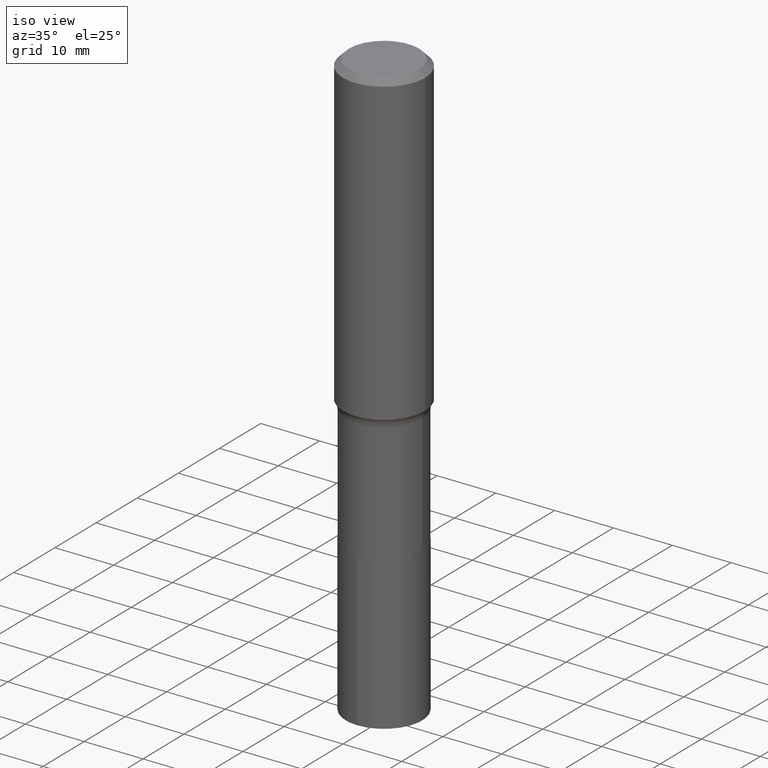
[diagram: clean part render]
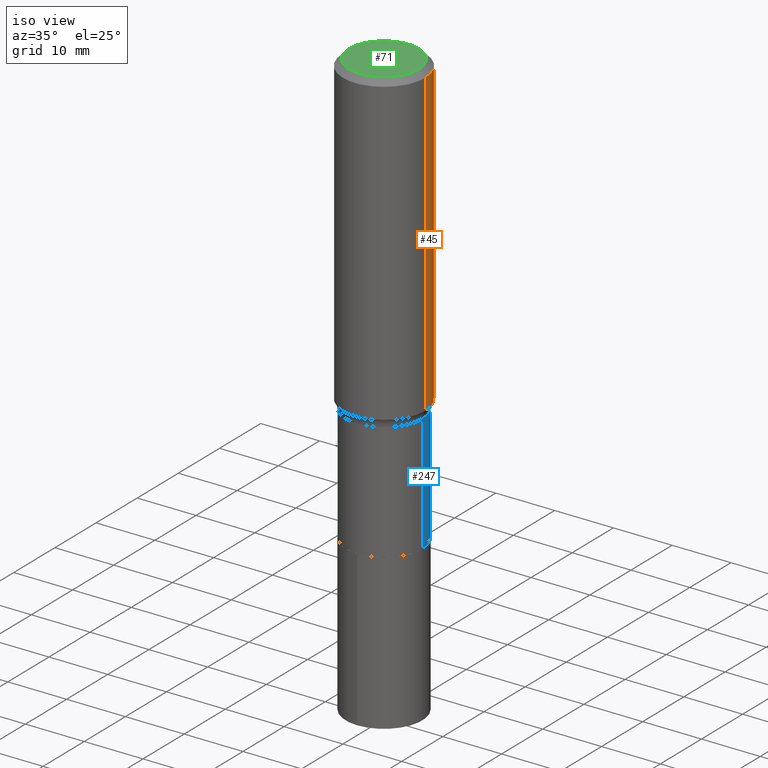
[diagram: same view with three faces highlighted in distinct colors, each labeled with its STEP entity id]
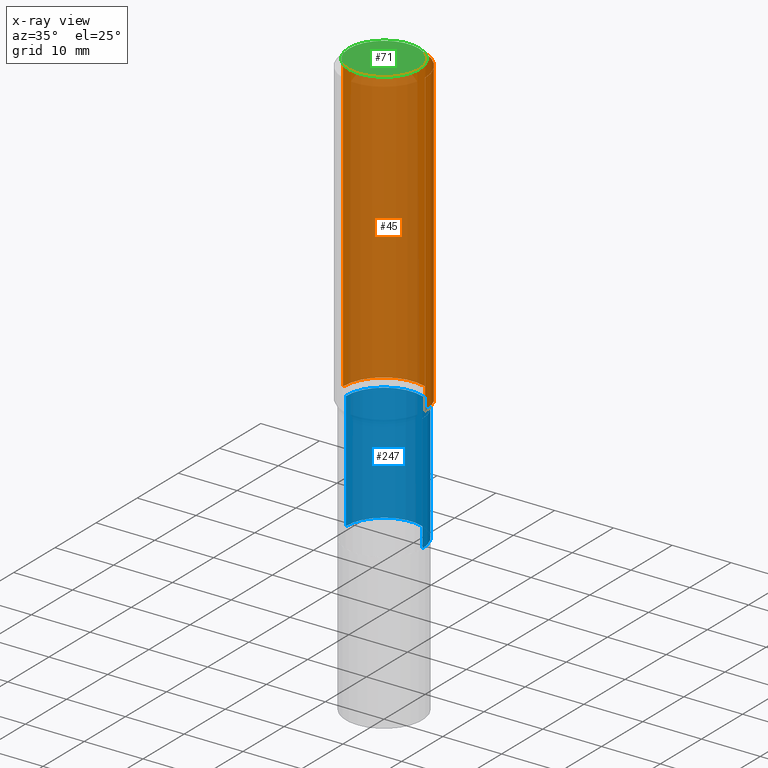
[diagram: x-ray of the same camera — body ghosted, the three highlighted faces saturated]
A machine part, iso view with three faces highlighted in distinct colors.
The next image is the same camera in x-ray (body ghosted, the three faces saturated) — at least one of them is partly hidden behind the body in this view.
Their STEP definitions:

[orange] entity #45 — the highlighted cylindrical surface (partial cylindrical patch) has radius 7.0002 mm, axis along (-0, 0, 1).
#4 = VECTOR ( 'NONE', #52, 39.37007874015748143 ) ;
#14 = CARTESIAN_POINT ( 'NONE',  ( -0.2756000000000000116, -1.705996447411659768E-15, -0.04134000000000027930 ) ) ;
#24 = DIRECTION ( 'NONE',  ( 1.000000000000000000, -6.982962677686267499E-15, 0.000000000000000000 ) ) ;
#45 = ADVANCED_FACE ( 'NONE', ( #444 ), #297, .T. ) ;
#46 = DIRECTION ( 'NONE',  ( -2.445468806185136877E-29, 3.491481338843145188E-15, 1.000000000000000000 ) ) ;
#52 = DIRECTION ( 'NONE',  ( -2.445468806185136877E-29, 3.491481338843145188E-15, 1.000000000000000000 ) ) ;
#62 = CIRCLE ( 'NONE', #107, 0.2756000000000002892 ) ;
#76 = LINE ( 'NONE', #269, #4 ) ;
#91 = CARTESIAN_POINT ( 'NONE',  ( 0.000000000000000000, 0.000000000000000000, 0.000000000000000000 ) ) ;
#107 = AXIS2_PLACEMENT_3D ( 'NONE', #388, #354, #415 ) ;
#109 = EDGE_CURVE ( 'NONE', #326, #191, #76, .T. ) ;
#165 = EDGE_LOOP ( 'NONE', ( #184, #364, #238, #383 ) ) ;
#184 = ORIENTED_EDGE ( 'NONE', *, *, #394, .T. ) ;
#189 = CARTESIAN_POINT ( 'NONE',  ( -0.2756000000000001227, 1.958255779754836984E-15, -1.355658510874252567E-29 ) ) ;
#191 = VERTEX_POINT ( 'NONE', #382 ) ;
#198 = DIRECTION ( 'NONE',  ( 1.000000000000000000, -6.982962677686267499E-15, 4.876176775795935793E-29 ) ) ;
#201 = CARTESIAN_POINT ( 'NONE',  ( 0.2756000000000002892, -9.108671129755555229E-15, -2.057627098234926510 ) ) ;
#223 = LINE ( 'NONE', #189, #321 ) ;
#225 = DIRECTION ( 'NONE',  ( -2.445468806185136597E-29, 3.491481338843145583E-15, 1.000000000000000000 ) ) ;
#238 = ORIENTED_EDGE ( 'NONE', *, *, #429, .F. ) ;
#265 = VERTEX_POINT ( 'NONE', #14 ) ;
#269 = CARTESIAN_POINT ( 'NONE',  ( 0.2756000000000001227, -1.924504513970336137E-15, 1.343874319409360548E-29 ) ) ;
#297 = CYLINDRICAL_SURFACE ( 'NONE', #433, 0.2756000000000001227 ) ;
#298 = VERTEX_POINT ( 'NONE', #366 ) ;
#312 = CIRCLE ( 'NONE', #391, 0.2756000000000000116 ) ;
#321 = VECTOR ( 'NONE', #46, 39.37007874015748143 ) ;
#326 = VERTEX_POINT ( 'NONE', #201 ) ;
#345 = CARTESIAN_POINT ( 'NONE',  ( 1.010956804476942398E-30, -1.443378385477766056E-16, -0.04134000000000027930 ) ) ;
#354 = DIRECTION ( 'NONE',  ( -2.445468806185136597E-29, 3.491481338843145583E-15, 1.000000000000000000 ) ) ;
#363 = EDGE_CURVE ( 'NONE', #298, #265, #223, .T. ) ;
#364 = ORIENTED_EDGE ( 'NONE', *, *, #363, .T. ) ;
#366 = CARTESIAN_POINT ( 'NONE',  ( -0.2756000000000002892, -5.225910836030380530E-15, -2.057627098234926510 ) ) ;
#382 = CARTESIAN_POINT ( 'NONE',  ( 0.2756000000000000116, -2.068842352518111732E-15, -0.04134000000000027930 ) ) ;
#383 = ORIENTED_EDGE ( 'NONE', *, *, #109, .F. ) ;
#388 = CARTESIAN_POINT ( 'NONE',  ( 5.031862883494752694E-29, -7.184166615785218698E-15, -2.057627098234926510 ) ) ;
#391 = AXIS2_PLACEMENT_3D ( 'NONE', #345, #449, #24 ) ;
#394 = EDGE_CURVE ( 'NONE', #326, #298, #62, .T. ) ;
#415 = DIRECTION ( 'NONE',  ( 1.000000000000000000, -6.982962677686265922E-15, 0.000000000000000000 ) ) ;
#429 = EDGE_CURVE ( 'NONE', #191, #265, #312, .T. ) ;
#433 = AXIS2_PLACEMENT_3D ( 'NONE', #91, #225, #198 ) ;
#444 = FACE_OUTER_BOUND ( 'NONE', #165, .T. ) ;
#449 = DIRECTION ( 'NONE',  ( -2.445468806185136597E-29, 3.491481338843145583E-15, 1.000000000000000000 ) ) ;

[blue] entity #247 — the highlighted cylindrical surface (partial cylindrical patch) has radius 6.4999 mm, axis along (-0, 0, 1).
#2 = ORIENTED_EDGE ( 'NONE', *, *, #424, .T. ) ;
#8 = DIRECTION ( 'NONE',  ( 1.000000000000000000, -6.982962677686266711E-15, 4.876176775795935232E-29 ) ) ;
#12 = DIRECTION ( 'NONE',  ( -2.445468806185136877E-29, 3.491481338843145188E-15, 1.000000000000000000 ) ) ;
#16 = VERTEX_POINT ( 'NONE', #28 ) ;
#18 = CARTESIAN_POINT ( 'NONE',  ( -0.2559000000000000719, -6.923866689452313634E-15, -2.897499999999999964 ) ) ;
#28 = CARTESIAN_POINT ( 'NONE',  ( 0.2559000000000000719, -1.190350732851793045E-14, -2.897499999999999964 ) ) ;
#31 = CIRCLE ( 'NONE', #224, 0.2559000000000000719 ) ;
#32 = EDGE_CURVE ( 'NONE', #217, #368, #142, .T. ) ;
#39 = DIRECTION ( 'NONE',  ( -2.445468806185136877E-29, 3.491481338843145188E-15, 1.000000000000000000 ) ) ;
#61 = DIRECTION ( 'NONE',  ( 1.000000000000000000, -6.982962677686266711E-15, 0.000000000000000000 ) ) ;
#69 = AXIS2_PLACEMENT_3D ( 'NONE', #82, #259, #8 ) ;
#73 = FACE_OUTER_BOUND ( 'NONE', #308, .T. ) ;
#82 = CARTESIAN_POINT ( 'NONE',  ( 0.000000000000000000, 0.000000000000000000, 0.000000000000000000 ) ) ;
#88 = VECTOR ( 'NONE', #12, 39.37007874015748143 ) ;
#114 = CARTESIAN_POINT ( 'NONE',  ( 0.2558999999999999608, -9.154664070446721280E-15, -2.110199999999999854 ) ) ;
#132 = AXIS2_PLACEMENT_3D ( 'NONE', #241, #278, #61 ) ;
#142 = LINE ( 'NONE', #353, #149 ) ;
#149 = VECTOR ( 'NONE', #39, 39.37007874015748143 ) ;
#172 = CARTESIAN_POINT ( 'NONE',  ( 7.085745865921433693E-29, -1.011656717929801471E-14, -2.897499999999999964 ) ) ;
#174 = ORIENTED_EDGE ( 'NONE', *, *, #286, .F. ) ;
#217 = VERTEX_POINT ( 'NONE', #18 ) ;
#224 = AXIS2_PLACEMENT_3D ( 'NONE', #172, #316, #318 ) ;
#226 = CYLINDRICAL_SURFACE ( 'NONE', #69, 0.2559000000000000163 ) ;
#241 = CARTESIAN_POINT ( 'NONE',  ( 5.160428274811875519E-29, -7.367723921226805540E-15, -2.110199999999999854 ) ) ;
#247 = ADVANCED_FACE ( 'NONE', ( #73 ), #226, .T. ) ;
#255 = VERTEX_POINT ( 'NONE', #114 ) ;
#259 = DIRECTION ( 'NONE',  ( -2.445468806185136597E-29, 3.491481338843145583E-15, 1.000000000000000000 ) ) ;
#278 = DIRECTION ( 'NONE',  ( -2.445468806185136597E-29, 3.491481338843145583E-15, 1.000000000000000000 ) ) ;
#286 = EDGE_CURVE ( 'NONE', #16, #255, #300, .T. ) ;
#300 = LINE ( 'NONE', #332, #88 ) ;
#308 = EDGE_LOOP ( 'NONE', ( #2, #399, #337, #174 ) ) ;
#316 = DIRECTION ( 'NONE',  ( -2.445468806185136597E-29, 3.491481338843145583E-15, 1.000000000000000000 ) ) ;
#318 = DIRECTION ( 'NONE',  ( 1.000000000000000000, -6.982962677686268288E-15, 0.000000000000000000 ) ) ;
#330 = CARTESIAN_POINT ( 'NONE',  ( -0.2558999999999999608, -6.923866689452313634E-15, -2.110199999999999854 ) ) ;
#332 = CARTESIAN_POINT ( 'NONE',  ( 0.2559000000000000163, -1.786940149219915740E-15, 1.247813636926179898E-29 ) ) ;
#337 = ORIENTED_EDGE ( 'NONE', *, *, #426, .F. ) ;
#353 = CARTESIAN_POINT ( 'NONE',  ( -0.2559000000000000163, 1.818278860810096492E-15, -1.258755489596230312E-29 ) ) ;
#368 = VERTEX_POINT ( 'NONE', #330 ) ;
#399 = ORIENTED_EDGE ( 'NONE', *, *, #32, .T. ) ;
#423 = CIRCLE ( 'NONE', #132, 0.2558999999999999608 ) ;
#424 = EDGE_CURVE ( 'NONE', #16, #217, #31, .T. ) ;
#426 = EDGE_CURVE ( 'NONE', #255, #368, #423, .T. ) ;

[green] entity #71 — the highlighted planar face has unit normal (0, -0, -1).
#10 = DIRECTION ( 'NONE',  ( -1.000000000000000000, 6.982962677686265922E-15, -4.876176775795935793E-29 ) ) ;
#71 = ADVANCED_FACE ( 'NONE', ( #202 ), #401, .F. ) ;
#92 = EDGE_CURVE ( 'NONE', #402, #203, #409, .T. ) ;
#135 = CARTESIAN_POINT ( 'NONE',  ( 0.2342600000000000238, -1.821115673845785155E-15, 4.101342130356573868E-18 ) ) ;
#147 = ORIENTED_EDGE ( 'NONE', *, *, #199, .T. ) ;
#185 = ORIENTED_EDGE ( 'NONE', *, *, #92, .T. ) ;
#199 = EDGE_CURVE ( 'NONE', #203, #402, #361, .T. ) ;
#202 = FACE_OUTER_BOUND ( 'NONE', #357, .T. ) ;
#203 = VERTEX_POINT ( 'NONE', #135 ) ;
#211 = CARTESIAN_POINT ( 'NONE',  ( -1.002970424325033577E-46, 1.431975951230896486E-32, 4.101342130344485961E-18 ) ) ;
#240 = CARTESIAN_POINT ( 'NONE',  ( -0.2342600000000000238, 1.707997756148671759E-15, 4.101342130332794026E-18 ) ) ;
#248 = AXIS2_PLACEMENT_3D ( 'NONE', #260, #367, #10 ) ;
#260 = CARTESIAN_POINT ( 'NONE',  ( -5.014852121625167883E-47, 7.159879756154482429E-33, 2.050671065172242981E-18 ) ) ;
#301 = CARTESIAN_POINT ( 'NONE',  ( -1.002970424325033577E-46, 1.431975951230896486E-32, 4.101342130344485961E-18 ) ) ;
#311 = DIRECTION ( 'NONE',  ( -2.445468806185136597E-29, 3.491481338843145583E-15, 1.000000000000000000 ) ) ;
#357 = EDGE_LOOP ( 'NONE', ( #185, #147 ) ) ;
#361 = CIRCLE ( 'NONE', #422, 0.2342600000000000238 ) ;
#367 = DIRECTION ( 'NONE',  ( 2.438088387897960049E-29, -3.491481338843145188E-15, -1.000000000000000000 ) ) ;
#375 = DIRECTION ( 'NONE',  ( 1.000000000000000000, -6.982962677686267499E-15, 4.876157962347795834E-29 ) ) ;
#378 = DIRECTION ( 'NONE',  ( -2.445468806185136597E-29, 3.491481338843145583E-15, 1.000000000000000000 ) ) ;
#386 = DIRECTION ( 'NONE',  ( 1.000000000000000000, -6.982962677686267499E-15, 4.876157962347795834E-29 ) ) ;
#401 = PLANE ( 'NONE',  #248 ) ;
#402 = VERTEX_POINT ( 'NONE', #240 ) ;
#409 = CIRCLE ( 'NONE', #428, 0.2342600000000000238 ) ;
#422 = AXIS2_PLACEMENT_3D ( 'NONE', #211, #311, #386 ) ;
#428 = AXIS2_PLACEMENT_3D ( 'NONE', #301, #378, #375 ) ;